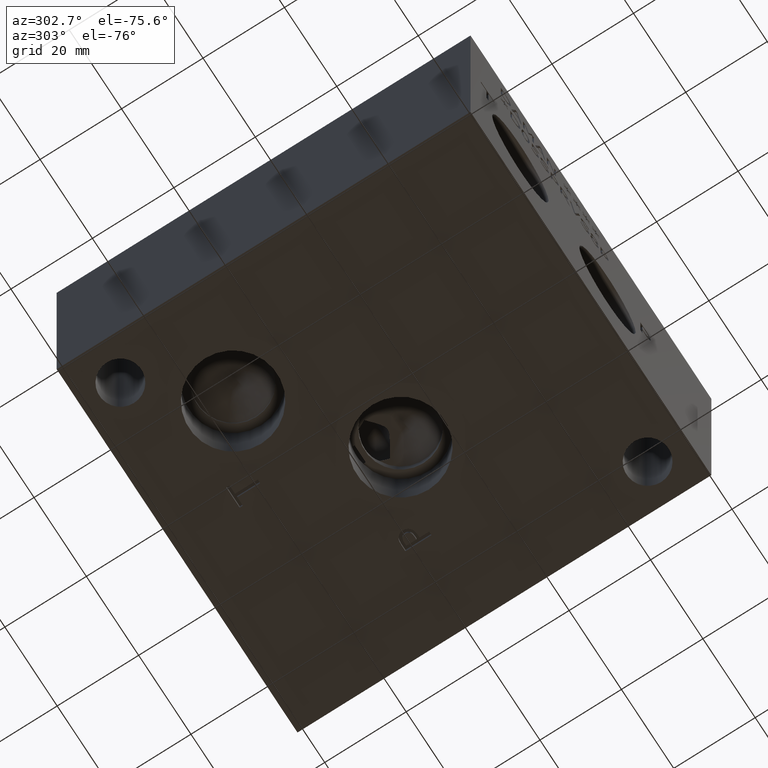
[diagram: clean part render]
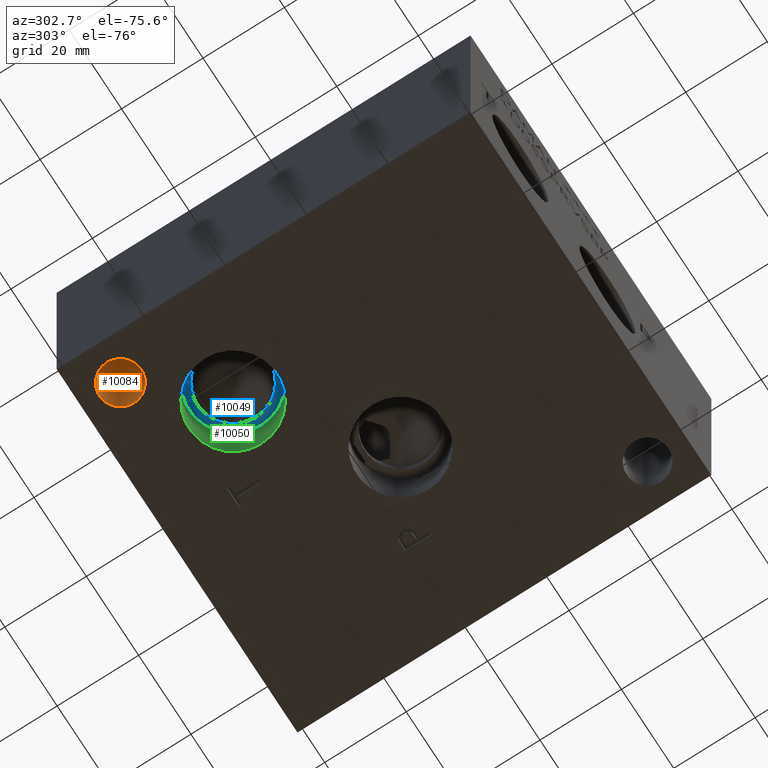
[diagram: same view with three faces highlighted in distinct colors, each labeled with its STEP entity id]
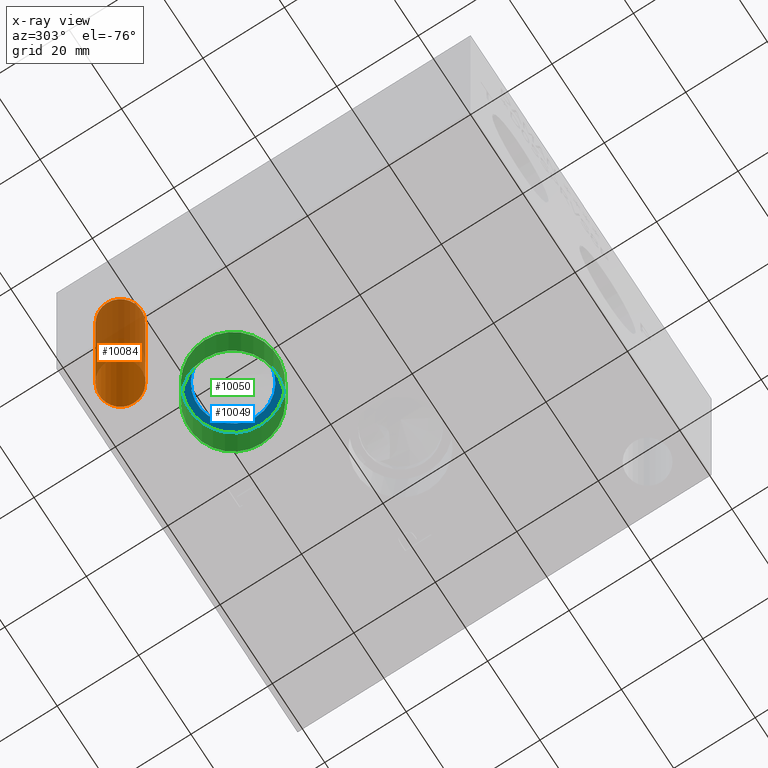
[diagram: x-ray of the same camera — body ghosted, the three highlighted faces saturated]
A machine part, auxiliary view with three faces highlighted in distinct colors.
The next image is the same camera in x-ray (body ghosted, the three faces saturated) — at least one of them is partly hidden behind the body in this view.
Their STEP definitions:

[orange] entity #10084 — the highlighted cylindrical surface (bore or boss wall) has radius 5.1562 mm, axis along (0, 0, 1).
#603=CYLINDRICAL_SURFACE('',#10545,5.1562);
#1485=FACE_OUTER_BOUND('',#2057,.T.);
#2057=EDGE_LOOP('',(#9406,#9407,#9408,#9409));
#3049=LINE('',#17206,#4017);
#4017=VECTOR('',#12400,5.1562);
#4061=CIRCLE('',#10403,5.1562);
#4119=CIRCLE('',#10541,5.1562);
#5187=VERTEX_POINT('',#16409);
#5352=VERTEX_POINT('',#17197);
#6478=EDGE_CURVE('',#5187,#5187,#4061,.T.);
#6725=EDGE_CURVE('',#5352,#5352,#4119,.T.);
#6729=EDGE_CURVE('',#5352,#5187,#3049,.T.);
#9406=ORIENTED_EDGE('',*,*,#6725,.T.);
#9407=ORIENTED_EDGE('',*,*,#6729,.T.);
#9408=ORIENTED_EDGE('',*,*,#6478,.F.);
#9409=ORIENTED_EDGE('',*,*,#6729,.F.);
#10084=ADVANCED_FACE('',(#1485),#603,.F.);
#10403=AXIS2_PLACEMENT_3D('',#16410,#11964,#11965);
#10541=AXIS2_PLACEMENT_3D('',#17198,#12389,#12390);
#10545=AXIS2_PLACEMENT_3D('',#17205,#12398,#12399);
#11964=DIRECTION('center_axis',(0.,0.,1.));
#11965=DIRECTION('ref_axis',(1.,0.,0.));
#12389=DIRECTION('center_axis',(0.,0.,1.));
#12390=DIRECTION('ref_axis',(1.,0.,0.));
#12398=DIRECTION('center_axis',(0.,0.,1.));
#12399=DIRECTION('ref_axis',(1.,0.,0.));
#12400=DIRECTION('',(0.,0.,-1.));
#16409=CARTESIAN_POINT('',(4.3688,92.075,0.));
#16410=CARTESIAN_POINT('Origin',(9.525,92.075,0.));
#17197=CARTESIAN_POINT('',(4.3688,92.075,49.276));
#17198=CARTESIAN_POINT('Origin',(9.525,92.075,49.276));
#17205=CARTESIAN_POINT('Origin',(9.525,92.075,-87.6046512354931));
#17206=CARTESIAN_POINT('',(4.3688,92.075,-87.6046512354931));

[blue] entity #10049 — the highlighted planar face has unit normal (0, 0, -1).
#669=FACE_BOUND('',#2015,.T.);
#987=PLANE('',#10458);
#1450=FACE_OUTER_BOUND('',#2014,.T.);
#2014=EDGE_LOOP('',(#9229,#9230));
#2015=EDGE_LOOP('',(#9231));
#4070=CIRCLE('',#10459,10.795);
#4071=CIRCLE('',#10460,10.795);
#4072=CIRCLE('',#10461,8.7376);
#5299=VERTEX_POINT('',#17036);
#5300=VERTEX_POINT('',#17037);
#5301=VERTEX_POINT('',#17040);
#6650=EDGE_CURVE('',#5299,#5300,#4070,.T.);
#6651=EDGE_CURVE('',#5300,#5299,#4071,.T.);
#6652=EDGE_CURVE('',#5301,#5301,#4072,.T.);
#9229=ORIENTED_EDGE('',*,*,#6650,.T.);
#9230=ORIENTED_EDGE('',*,*,#6651,.T.);
#9231=ORIENTED_EDGE('',*,*,#6652,.F.);
#10049=ADVANCED_FACE('',(#1450,#669),#987,.T.);
#10458=AXIS2_PLACEMENT_3D('',#17035,#12197,#12198);
#10459=AXIS2_PLACEMENT_3D('',#17038,#12199,#12200);
#10460=AXIS2_PLACEMENT_3D('',#17039,#12201,#12202);
#10461=AXIS2_PLACEMENT_3D('',#17041,#12203,#12204);
#12197=DIRECTION('center_axis',(0.,0.,-1.));
#12198=DIRECTION('ref_axis',(1.,0.,0.));
#12199=DIRECTION('center_axis',(0.,0.,-1.));
#12200=DIRECTION('ref_axis',(1.,0.,0.));
#12201=DIRECTION('center_axis',(0.,0.,-1.));
#12202=DIRECTION('ref_axis',(1.,0.,0.));
#12203=DIRECTION('center_axis',(0.,0.,-1.));
#12204=DIRECTION('ref_axis',(1.,0.,0.));
#17035=CARTESIAN_POINT('Origin',(25.4,74.5998,15.367));
#17036=CARTESIAN_POINT('',(36.195,74.5998,15.367));
#17037=CARTESIAN_POINT('',(14.605,74.5998,15.367));
#17038=CARTESIAN_POINT('Origin',(25.4,74.5998,15.367));
#17039=CARTESIAN_POINT('Origin',(25.4,74.5998,15.367));
#17040=CARTESIAN_POINT('',(16.6624,74.5998,15.367));
#17041=CARTESIAN_POINT('Origin',(25.4,74.5998,15.367));

[green] entity #10050 — the highlighted cylindrical surface (bore or boss wall) has radius 10.795 mm, axis along (0, 0, -1).
#584=CYLINDRICAL_SURFACE('',#10462,10.795);
#1451=FACE_OUTER_BOUND('',#2016,.T.);
#2016=EDGE_LOOP('',(#9232,#9233,#9234,#9235,#9236,#9237));
#3022=LINE('',#17043,#3990);
#3990=VECTOR('',#12207,10.795);
#4062=CIRCLE('',#10404,10.795);
#4063=CIRCLE('',#10405,10.795);
#4070=CIRCLE('',#10459,10.795);
#4071=CIRCLE('',#10460,10.795);
#5188=VERTEX_POINT('',#16411);
#5189=VERTEX_POINT('',#16412);
#5299=VERTEX_POINT('',#17036);
#5300=VERTEX_POINT('',#17037);
#6479=EDGE_CURVE('',#5188,#5189,#4062,.T.);
#6480=EDGE_CURVE('',#5189,#5188,#4063,.T.);
#6650=EDGE_CURVE('',#5299,#5300,#4070,.T.);
#6651=EDGE_CURVE('',#5300,#5299,#4071,.T.);
#6653=EDGE_CURVE('',#5189,#5300,#3022,.T.);
#9232=ORIENTED_EDGE('',*,*,#6479,.F.);
#9233=ORIENTED_EDGE('',*,*,#6480,.F.);
#9234=ORIENTED_EDGE('',*,*,#6653,.T.);
#9235=ORIENTED_EDGE('',*,*,#6650,.F.);
#9236=ORIENTED_EDGE('',*,*,#6651,.F.);
#9237=ORIENTED_EDGE('',*,*,#6653,.F.);
#10050=ADVANCED_FACE('',(#1451),#584,.F.);
#10404=AXIS2_PLACEMENT_3D('',#16413,#11966,#11967);
#10405=AXIS2_PLACEMENT_3D('',#16414,#11968,#11969);
#10459=AXIS2_PLACEMENT_3D('',#17038,#12199,#12200);
#10460=AXIS2_PLACEMENT_3D('',#17039,#12201,#12202);
#10462=AXIS2_PLACEMENT_3D('',#17042,#12205,#12206);
#11966=DIRECTION('center_axis',(0.,0.,1.));
#11967=DIRECTION('ref_axis',(1.,0.,0.));
#11968=DIRECTION('center_axis',(0.,0.,1.));
#11969=DIRECTION('ref_axis',(1.,0.,0.));
#12199=DIRECTION('center_axis',(0.,0.,-1.));
#12200=DIRECTION('ref_axis',(1.,0.,0.));
#12201=DIRECTION('center_axis',(0.,0.,-1.));
#12202=DIRECTION('ref_axis',(1.,0.,0.));
#12205=DIRECTION('center_axis',(0.,0.,-1.));
#12206=DIRECTION('ref_axis',(1.,0.,0.));
#12207=DIRECTION('',(0.,0.,1.));
#16411=CARTESIAN_POINT('',(36.195,74.5998,0.));
#16412=CARTESIAN_POINT('',(14.605,74.5998,0.));
#16413=CARTESIAN_POINT('Origin',(25.4,74.5998,0.));
#16414=CARTESIAN_POINT('Origin',(25.4,74.5998,0.));
#17036=CARTESIAN_POINT('',(36.195,74.5998,15.367));
#17037=CARTESIAN_POINT('',(14.605,74.5998,15.367));
#17038=CARTESIAN_POINT('Origin',(25.4,74.5998,15.367));
#17039=CARTESIAN_POINT('Origin',(25.4,74.5998,15.367));
#17042=CARTESIAN_POINT('Origin',(25.4,74.5998,7.6835));
#17043=CARTESIAN_POINT('',(14.605,74.5998,7.6835));